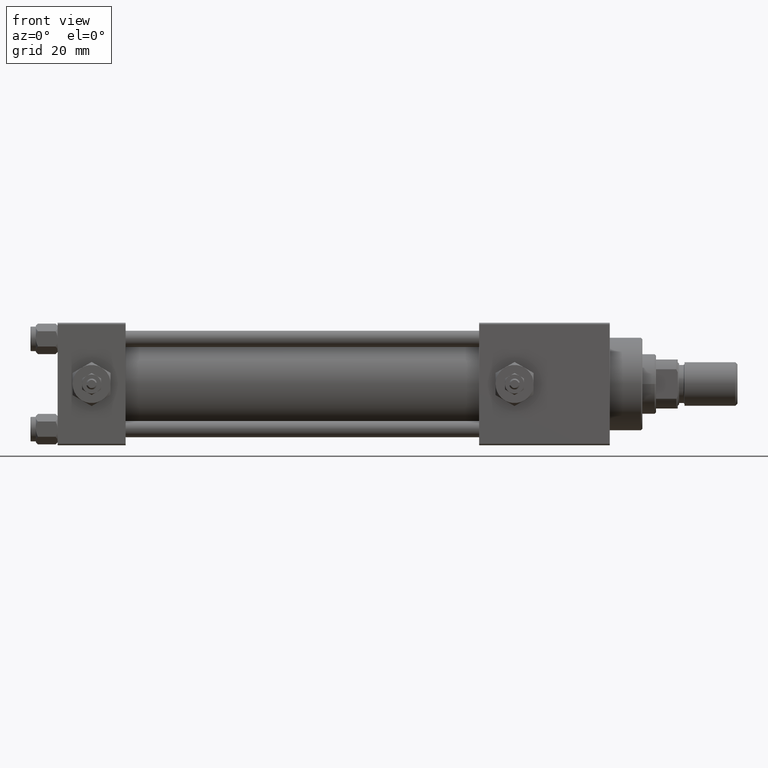
[diagram: clean part render]
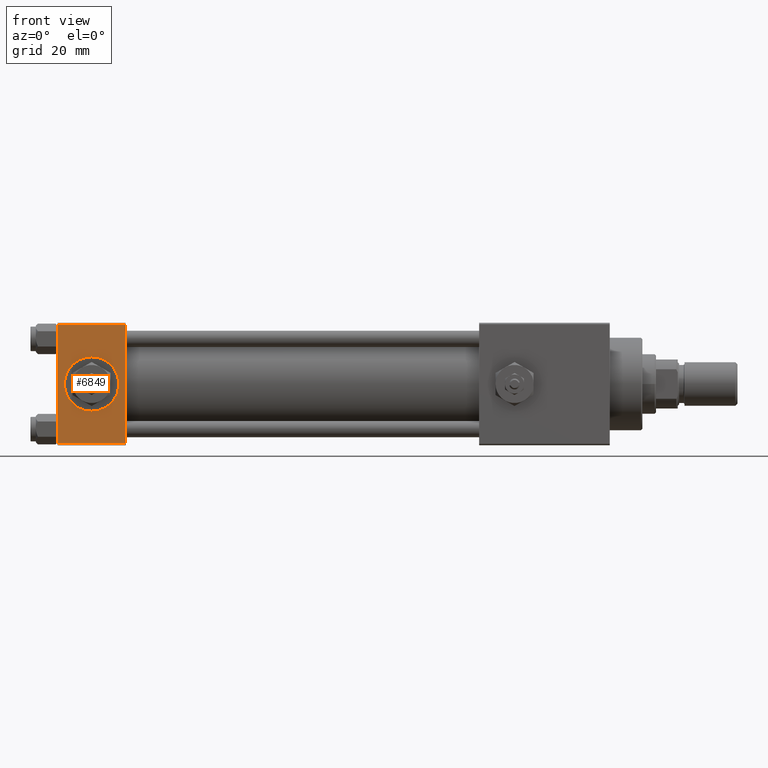
[diagram: same view with one face highlighted and labeled with its STEP entity id]
A machine part, front view. The second image highlights one B-rep face of the part: STEP entity #6849.
In plain terms, the highlighted planar face has unit normal (0, 1, 0).
Its self-contained STEP definition (entity closure, byte-faithful):
#450 = CARTESIAN_POINT ( 'NONE',  ( 25.00000000000000000, -22.50000000000000000, -21.99999999999998579 ) ) ;
#2687 = DIRECTION ( 'NONE',  ( 0.000000000000000000, 0.000000000000000000, -1.000000000000000000 ) ) ;
#3217 = VERTEX_POINT ( 'NONE', #22556 ) ;
#4195 = DIRECTION ( 'NONE',  ( 1.000000000000000000, 0.000000000000000000, 0.000000000000000000 ) ) ;
#6849 = ADVANCED_FACE ( 'NONE', ( #15513, #51181 ), #14979, .F. ) ;
#9299 = DIRECTION ( 'NONE',  ( 0.000000000000000000, -1.000000000000000000, -8.673617379884036705E-17 ) ) ;
#9403 = AXIS2_PLACEMENT_3D ( 'NONE', #49488, #9299, #25523 ) ;
#11287 = VERTEX_POINT ( 'NONE', #44203 ) ;
#11651 = ORIENTED_EDGE ( 'NONE', *, *, #31452, .T. ) ;
#11675 = DIRECTION ( 'NONE',  ( 0.000000000000000000, 0.000000000000000000, -1.000000000000000000 ) ) ;
#11772 = DIRECTION ( 'NONE',  ( -0.000000000000000000, 1.000000000000000000, 0.000000000000000000 ) ) ;
#12204 = LINE ( 'NONE', #24443, #28473 ) ;
#14285 = AXIS2_PLACEMENT_3D ( 'NONE', #31754, #11772, #40253 ) ;
#14979 = PLANE ( 'NONE',  #14285 ) ;
#15513 = FACE_BOUND ( 'NONE', #41718, .T. ) ;
#17015 = ORIENTED_EDGE ( 'NONE', *, *, #21434, .T. ) ;
#17097 = ORIENTED_EDGE ( 'NONE', *, *, #33235, .F. ) ;
#18112 = DIRECTION ( 'NONE',  ( -1.000000000000000000, 0.000000000000000000, 0.000000000000000000 ) ) ;
#20278 = VERTEX_POINT ( 'NONE', #42505 ) ;
#21434 = EDGE_CURVE ( 'NONE', #3217, #20278, #50585, .T. ) ;
#21551 = AXIS2_PLACEMENT_3D ( 'NONE', #37586, #33592, #2687 ) ;
#22326 = EDGE_CURVE ( 'NONE', #29838, #35877, #51046, .T. ) ;
#22556 = CARTESIAN_POINT ( 'NONE',  ( 25.00000000000000000, -22.50000000000000000, 22.00000000000000000 ) ) ;
#24443 = CARTESIAN_POINT ( 'NONE',  ( 0.000000000000000000, -22.50000000000000000, 22.50000000000000000 ) ) ;
#24868 = DIRECTION ( 'NONE',  ( 0.000000000000000000, 0.000000000000000000, -1.000000000000000000 ) ) ;
#25261 = EDGE_LOOP ( 'NONE', ( #26340, #11651, #41208, #17015 ) ) ;
#25523 = DIRECTION ( 'NONE',  ( 0.000000000000000000, 0.000000000000000000, -1.000000000000000000 ) ) ;
#26340 = ORIENTED_EDGE ( 'NONE', *, *, #35568, .T. ) ;
#27161 = ORIENTED_EDGE ( 'NONE', *, *, #22326, .F. ) ;
#27347 = EDGE_CURVE ( 'NONE', #3217, #11287, #37101, .T. ) ;
#27909 = VERTEX_POINT ( 'NONE', #39931 ) ;
#28317 = VECTOR ( 'NONE', #4195, 1000.000000000000000 ) ;
#28473 = VECTOR ( 'NONE', #11675, 1000.000000000000000 ) ;
#29838 = VERTEX_POINT ( 'NONE', #43559 ) ;
#31452 = EDGE_CURVE ( 'NONE', #27909, #11287, #44382, .T. ) ;
#31754 = CARTESIAN_POINT ( 'NONE',  ( 25.00000000000000000, -22.50000000000000000, 22.50000000000000000 ) ) ;
#33235 = EDGE_CURVE ( 'NONE', #35877, #29838, #36875, .T. ) ;
#33592 = DIRECTION ( 'NONE',  ( 0.000000000000000000, -1.000000000000000000, -8.673617379884036705E-17 ) ) ;
#35568 = EDGE_CURVE ( 'NONE', #20278, #27909, #12204, .T. ) ;
#35877 = VERTEX_POINT ( 'NONE', #49051 ) ;
#36875 = CIRCLE ( 'NONE', #21551, 9.999999999999996447 ) ;
#37101 = LINE ( 'NONE', #45093, #40186 ) ;
#37586 = CARTESIAN_POINT ( 'NONE',  ( 12.50000000000000000, -22.50000000000000000, 0.000000000000000000 ) ) ;
#39931 = CARTESIAN_POINT ( 'NONE',  ( 0.000000000000000000, -22.50000000000000000, -21.99999999999997158 ) ) ;
#40186 = VECTOR ( 'NONE', #24868, 1000.000000000000000 ) ;
#40253 = DIRECTION ( 'NONE',  ( 0.000000000000000000, -0.000000000000000000, 1.000000000000000000 ) ) ;
#41208 = ORIENTED_EDGE ( 'NONE', *, *, #27347, .F. ) ;
#41718 = EDGE_LOOP ( 'NONE', ( #17097, #27161 ) ) ;
#42505 = CARTESIAN_POINT ( 'NONE',  ( 0.000000000000000000, -22.50000000000000000, 22.00000000000000000 ) ) ;
#42530 = VECTOR ( 'NONE', #18112, 1000.000000000000000 ) ;
#43559 = CARTESIAN_POINT ( 'NONE',  ( 12.50000000000000178, -22.50000000000000000, 9.999999999999996447 ) ) ;
#44203 = CARTESIAN_POINT ( 'NONE',  ( 25.00000000000000000, -22.50000000000000000, -21.99999999999997158 ) ) ;
#44382 = LINE ( 'NONE', #450, #28317 ) ;
#45093 = CARTESIAN_POINT ( 'NONE',  ( 25.00000000000000000, -22.50000000000000000, 22.50000000000000000 ) ) ;
#49051 = CARTESIAN_POINT ( 'NONE',  ( 12.50000000000000000, -22.50000000000000000, -9.999999999999996447 ) ) ;
#49488 = CARTESIAN_POINT ( 'NONE',  ( 12.50000000000000000, -22.50000000000000000, 0.000000000000000000 ) ) ;
#50585 = LINE ( 'NONE', #51111, #42530 ) ;
#51046 = CIRCLE ( 'NONE', #9403, 9.999999999999996447 ) ;
#51111 = CARTESIAN_POINT ( 'NONE',  ( 25.00000000000000000, -22.50000000000000000, 22.00000000000000000 ) ) ;
#51181 = FACE_OUTER_BOUND ( 'NONE', #25261, .T. ) ;